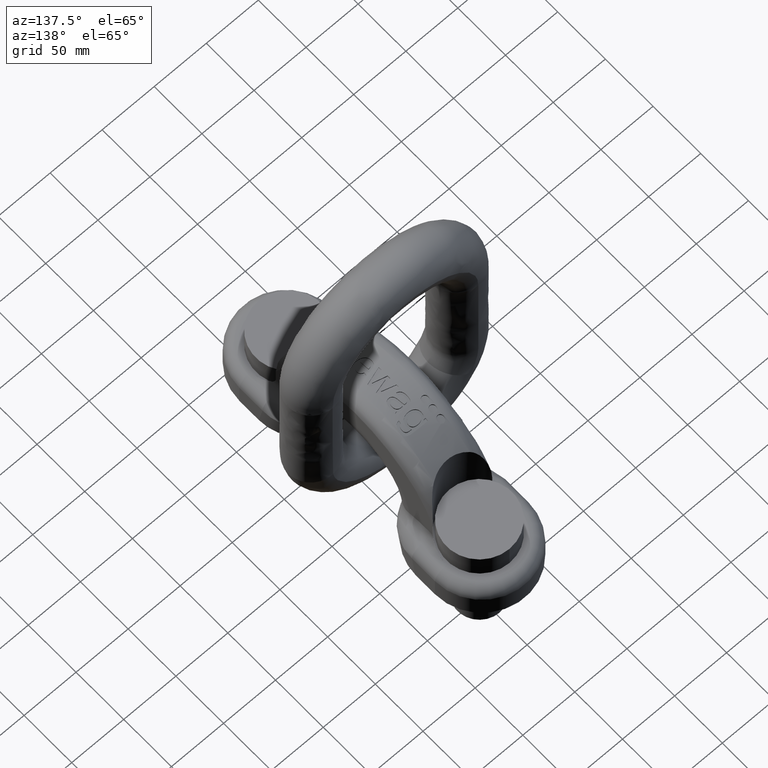
[diagram: clean part render]
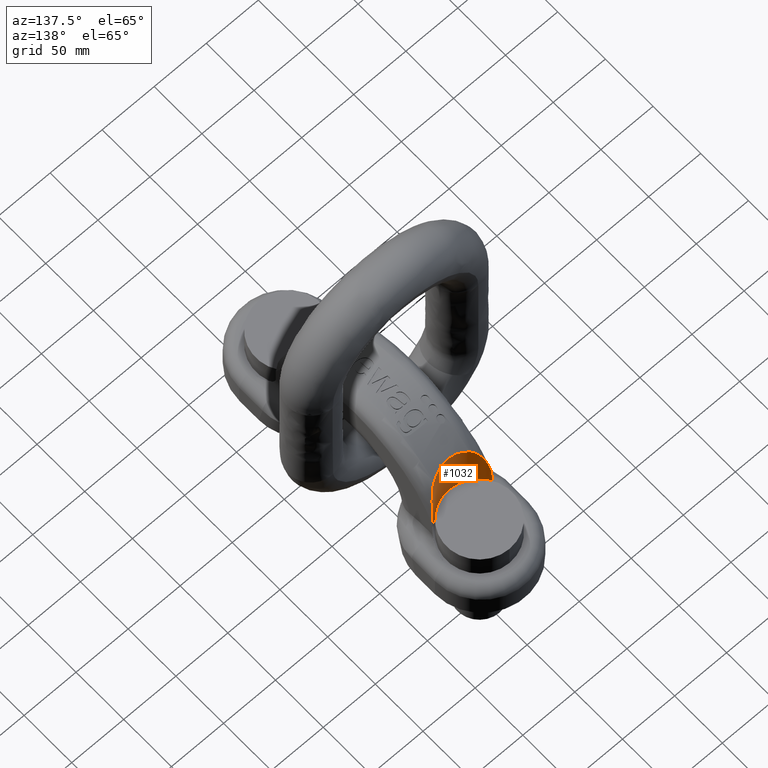
[diagram: same view with one face highlighted and labeled with its STEP entity id]
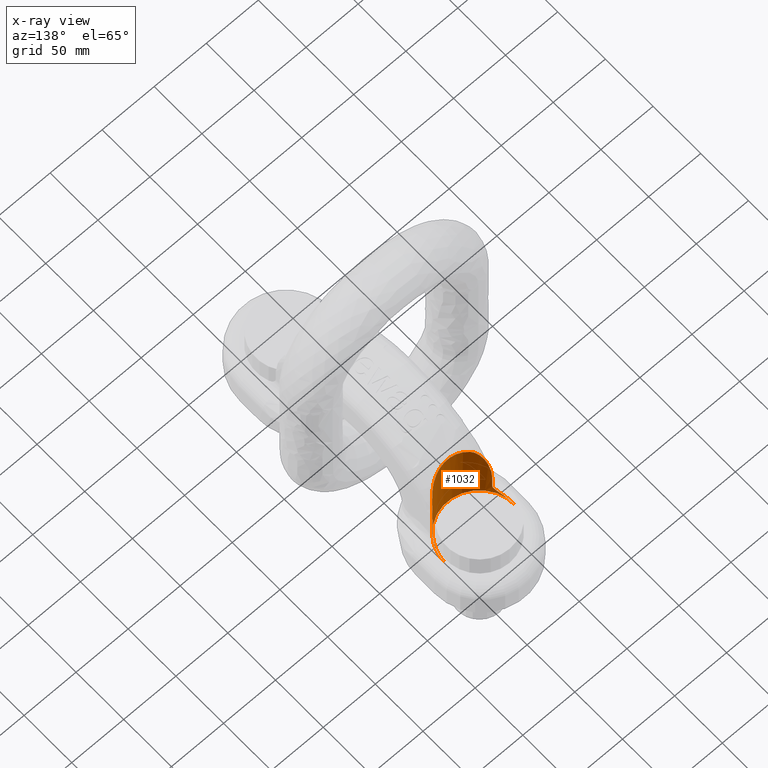
[diagram: x-ray of the same camera — body ghosted, the highlighted face saturated]
A machine part, auxiliary view. The second image highlights one B-rep face of the part: STEP entity #1032.
The next image is the same camera in x-ray: the body ghosted, the highlighted face saturated — about 0% of this face is hidden behind the body in this view.
In plain terms, the highlighted cylindrical surface (partial cylindrical patch) has radius 33.5 mm, axis along (0, 0, -1).
Its self-contained STEP definition (entity closure, byte-faithful):
#878=FACE_OUTER_BOUND('',#1615,.T.);
#1032=ADVANCED_FACE('',(#878),#1163,.F.);
#1163=CYLINDRICAL_SURFACE('',#3667,33.5);
#1188=LINE('',#4963,#1318);
#1190=LINE('',#4972,#1320);
#1318=VECTOR('',#3811,1.);
#1320=VECTOR('',#3819,1.);
#1615=EDGE_LOOP('',(#2384,#2385,#2386,#2387,#2388,#2389,#2390,#2391,#2392,
#2393,#2394,#2395));
#1759=B_SPLINE_CURVE_WITH_KNOTS('',3,(#4595,#4596,#4597,#4598,#4599,#4600,
#4601,#4602,#4603,#4604),.UNSPECIFIED.,.F.,.F.,(4,2,2,2,4),(0.,0.25,0.5,
0.75,1.),.UNSPECIFIED.);
#1785=B_SPLINE_CURVE_WITH_KNOTS('',3,(#5008,#5009,#5010,#5011,#5012,#5013,
#5014,#5015,#5016,#5017),.UNSPECIFIED.,.F.,.F.,(4,2,2,2,4),(0.,0.125,0.249999999999999,
0.5,1.),.UNSPECIFIED.);
#1787=B_SPLINE_CURVE_WITH_KNOTS('',3,(#5031,#5032,#5033,#5034,#5035,#5036,
#5037,#5038,#5039,#5040,#5041,#5042),.UNSPECIFIED.,.F.,.F.,(4,2,2,2,2,4),
(0.,0.25,0.5,0.75,0.875,1.),.UNSPECIFIED.);
#1788=B_SPLINE_CURVE_WITH_KNOTS('',3,(#5044,#5045,#5046,#5047,#5048,#5049),
 .UNSPECIFIED.,.F.,.F.,(4,2,4),(0.,0.5,1.),.UNSPECIFIED.);
#1789=B_SPLINE_CURVE_WITH_KNOTS('',3,(#5057,#5058,#5059,#5060,#5061,#5062),
 .UNSPECIFIED.,.F.,.F.,(4,2,4),(0.,0.5,1.),.UNSPECIFIED.);
#1791=B_SPLINE_CURVE_WITH_KNOTS('',3,(#5090,#5091,#5092,#5093),
 .UNSPECIFIED.,.F.,.F.,(4,4),(0.,1.),.UNSPECIFIED.);
#1793=B_SPLINE_CURVE_WITH_KNOTS('',3,(#5111,#5112,#5113,#5114),
 .UNSPECIFIED.,.F.,.F.,(4,4),(0.,1.),.UNSPECIFIED.);
#1795=B_SPLINE_CURVE_WITH_KNOTS('',3,(#5135,#5136,#5137,#5138,#5139,#5140),
 .UNSPECIFIED.,.F.,.F.,(4,2,4),(0.,0.5,1.),.UNSPECIFIED.);
#1797=B_SPLINE_CURVE_WITH_KNOTS('',3,(#5168,#5169,#5170,#5171,#5172,#5173),
 .UNSPECIFIED.,.F.,.F.,(4,2,4),(0.,0.5,1.),.UNSPECIFIED.);
#1998=CIRCLE('',#3616,33.5);
#2384=ORIENTED_EDGE('',*,*,#3213,.T.);
#2385=ORIENTED_EDGE('',*,*,#3210,.T.);
#2386=ORIENTED_EDGE('',*,*,#3206,.T.);
#2387=ORIENTED_EDGE('',*,*,#3194,.F.);
#2388=ORIENTED_EDGE('',*,*,#3203,.F.);
#2389=ORIENTED_EDGE('',*,*,#3148,.T.);
#2390=ORIENTED_EDGE('',*,*,#3205,.F.);
#2391=ORIENTED_EDGE('',*,*,#3190,.F.);
#2392=ORIENTED_EDGE('',*,*,#3221,.T.);
#2393=ORIENTED_EDGE('',*,*,#3218,.T.);
#2394=ORIENTED_EDGE('',*,*,#3215,.T.);
#2395=ORIENTED_EDGE('',*,*,#3275,.F.);
#2879=VERTEX_POINT('',#4580);
#2882=VERTEX_POINT('',#4594);
#2924=VERTEX_POINT('',#4962);
#2925=VERTEX_POINT('',#4964);
#2928=VERTEX_POINT('',#4971);
#2929=VERTEX_POINT('',#4973);
#2936=VERTEX_POINT('',#5050);
#2939=VERTEX_POINT('',#5063);
#2941=VERTEX_POINT('',#5094);
#2942=VERTEX_POINT('',#5115);
#2943=VERTEX_POINT('',#5116);
#2945=VERTEX_POINT('',#5141);
#3148=EDGE_CURVE('',#2879,#2882,#1759,.T.);
#3190=EDGE_CURVE('',#2924,#2925,#1188,.T.);
#3194=EDGE_CURVE('',#2928,#2929,#1190,.T.);
#3203=EDGE_CURVE('',#2879,#2928,#1785,.T.);
#3205=EDGE_CURVE('',#2925,#2882,#1787,.T.);
#3206=EDGE_CURVE('',#2936,#2929,#1788,.T.);
#3210=EDGE_CURVE('',#2939,#2936,#1789,.T.);
#3213=EDGE_CURVE('',#2941,#2939,#1791,.T.);
#3215=EDGE_CURVE('',#2942,#2943,#1793,.T.);
#3218=EDGE_CURVE('',#2945,#2942,#1795,.T.);
#3221=EDGE_CURVE('',#2924,#2945,#1797,.T.);
#3275=EDGE_CURVE('',#2941,#2943,#1998,.T.);
#3616=AXIS2_PLACEMENT_3D('',#5288,#3945,#3946);
#3667=AXIS2_PLACEMENT_3D('',#5937,#4054,#4055);
#3811=DIRECTION('',(0.,0.,1.));
#3819=DIRECTION('',(0.,0.,-1.));
#3945=DIRECTION('',(0.,0.,1.));
#3946=DIRECTION('',(1.,0.,0.));
#4054=DIRECTION('',(0.,0.,-1.));
#4055=DIRECTION('',(-1.,0.,0.));
#4580=CARTESIAN_POINT('',(-17.25,71.2826272093006,98.7859183879033));
#4594=CARTESIAN_POINT('',(17.2499999999802,71.2826272092887,98.7859183879162));
#4595=CARTESIAN_POINT('',(-17.25,71.2826272093006,98.7859183879033));
#4596=CARTESIAN_POINT('',(-14.8813647937172,69.8598314122696,100.327595161293));
#4597=CARTESIAN_POINT('',(-12.1966958032284,68.6492453176089,101.539626679179));
#4598=CARTESIAN_POINT('',(-6.30989384954624,66.9573843759394,103.193361406412));
#4599=CARTESIAN_POINT('',(-3.19926131233253,66.5018806193998,103.615153336341));
#4600=CARTESIAN_POINT('',(3.15975479605201,66.4981310281,103.618684329301));
#4601=CARTESIAN_POINT('',(6.28871737302955,66.952798327085,103.197740495797));
#4602=CARTESIAN_POINT('',(12.187692862586,68.6451654876728,101.543717653134));
#4603=CARTESIAN_POINT('',(14.8815531721436,69.8599445677433,100.327472551171));
#4604=CARTESIAN_POINT('',(17.2499999999802,71.2826272092887,98.7859183879162));
#4962=CARTESIAN_POINT('',(28.5,82.393183138341,43.4352484422014));
#4963=CARTESIAN_POINT('',(28.5,82.393183138341,139.7));
#4964=CARTESIAN_POINT('',(28.5,82.393183138341,56.7576487121895));
#4971=CARTESIAN_POINT('',(-28.5,82.393183138341,56.757648712211));
#4972=CARTESIAN_POINT('',(-28.5,82.393183138341,139.7));
#4973=CARTESIAN_POINT('',(-28.5,82.393183138341,43.4352484422014));
#5008=CARTESIAN_POINT('',(-17.25,71.2826272093006,98.7859183879033));
#5009=CARTESIAN_POINT('',(-18.7327053409328,72.1732611582172,97.820867974132));
#5010=CARTESIAN_POINT('',(-19.8813944195158,73.0068914220437,96.4917327968407));
#5011=CARTESIAN_POINT('',(-21.8887024871996,74.6074330129356,93.521116766512));
#5012=CARTESIAN_POINT('',(-22.6982387099181,75.3422763055189,91.9185136062366));
#5013=CARTESIAN_POINT('',(-24.8053191386329,77.3991226777861,86.8995580299854));
#5014=CARTESIAN_POINT('',(-25.7736021737588,78.5669346959696,83.2703942667855));
#5015=CARTESIAN_POINT('',(-27.9490631349377,81.3795999175274,72.2593920057563));
#5016=CARTESIAN_POINT('',(-28.4999999999989,82.393183138339,64.4681849493534));
#5017=CARTESIAN_POINT('',(-28.5,82.3931831383408,56.757648712211));
#5031=CARTESIAN_POINT('',(28.5,82.393183138341,56.7576487121895));
#5032=CARTESIAN_POINT('',(28.5,82.3931831383409,60.613279148144));
#5033=CARTESIAN_POINT('',(28.3491767950717,82.1417903864174,64.5085900530411));
#5034=CARTESIAN_POINT('',(27.7090981824433,81.1639347666079,72.1621844975057));
#5035=CARTESIAN_POINT('',(27.2261992385297,80.4454837459142,75.9118302351204));
#5036=CARTESIAN_POINT('',(25.7814345248804,78.5765860622839,83.2370135048475));
#5037=CARTESIAN_POINT('',(24.8183166928072,77.4130203215803,86.8616389382523));
#5038=CARTESIAN_POINT('',(22.7075027994182,75.3507213040855,91.8998880106614));
#5039=CARTESIAN_POINT('',(21.8864800527951,74.6059683843252,93.5230218169113));
#5040=CARTESIAN_POINT('',(19.8934707261996,73.0162146231274,96.4752381721029));
#5041=CARTESIAN_POINT('',(18.7262371651426,72.1693758434556,97.825077924389));
#5042=CARTESIAN_POINT('',(17.2499999999802,71.2826272092887,98.7859183879162));
#5044=CARTESIAN_POINT('',(-30.0102926850077,85.1126787849467,37.8049197290369));
#5045=CARTESIAN_POINT('',(-29.6209949759814,84.3279212035983,38.4783521230368));
#5046=CARTESIAN_POINT('',(-29.2394534971612,83.6409221586993,39.3010953807994));
#5047=CARTESIAN_POINT('',(-28.6749846349505,82.6705359339725,41.2201087203427));
#5048=CARTESIAN_POINT('',(-28.5,82.393183138341,42.3178506264848));
#5049=CARTESIAN_POINT('',(-28.5,82.3931831383409,43.4352484422014));
#5050=CARTESIAN_POINT('',(-30.0102926850077,85.1126787849467,37.8049197290369));
#5057=CARTESIAN_POINT('',(-33.4994722958303,100.18803164863,33.0051585819053));
#5058=CARTESIAN_POINT('',(-33.5151205148884,97.4001654323079,33.0620354908099));
#5059=CARTESIAN_POINT('',(-33.1846119190713,94.6858520165626,33.3920250433483));
#5060=CARTESIAN_POINT('',(-31.9146395081485,89.4684083788741,34.9211466395274));
#5061=CARTESIAN_POINT('',(-30.9958495129604,87.0993927435778,36.1000396881774));
#5062=CARTESIAN_POINT('',(-30.0102926850077,85.1126787849468,37.8049197290368));
#5063=CARTESIAN_POINT('',(-33.4994722958303,100.18803164863,33.0051585819053));
#5090=CARTESIAN_POINT('',(-33.4928239246255,100.693358171536,32.9999999999999));
#5091=CARTESIAN_POINT('',(-33.4963106992623,100.524928730924,32.9999999999999));
#5092=CARTESIAN_POINT('',(-33.4985269149096,100.356459475534,33.001722386111));
#5093=CARTESIAN_POINT('',(-33.4994722958305,100.18803164863,33.0051585819053));
#5094=CARTESIAN_POINT('',(-33.4928239246255,100.693358171536,32.9999999999999));
#5111=CARTESIAN_POINT('',(33.4994722958304,100.188031648631,33.0051585819053));
#5112=CARTESIAN_POINT('',(33.4985269149096,100.356459475534,33.001722386111));
#5113=CARTESIAN_POINT('',(33.4963106992624,100.524928730924,32.9999999999998));
#5114=CARTESIAN_POINT('',(33.4928239246255,100.693358171535,32.9999999999999));
#5115=CARTESIAN_POINT('',(33.4994722958304,100.188031648631,33.0051585819053));
#5116=CARTESIAN_POINT('',(33.4928239246255,100.693358171535,32.9999999999999));
#5135=CARTESIAN_POINT('',(30.0102926850076,85.1126787849468,37.8049197290369));
#5136=CARTESIAN_POINT('',(30.9932516646201,87.094155925757,36.1045336145132));
#5137=CARTESIAN_POINT('',(31.9162172259136,89.4819122255519,34.9196944183819));
#5138=CARTESIAN_POINT('',(33.1731318714599,94.6317214787764,33.4054037628078));
#5139=CARTESIAN_POINT('',(33.5150933619019,97.40500297286,33.0619367972815));
#5140=CARTESIAN_POINT('',(33.4994722958305,100.188031648631,33.0051585819053));
#5141=CARTESIAN_POINT('',(30.0102926850077,85.1126787849468,37.8049197290368));
#5168=CARTESIAN_POINT('',(28.5,82.393183138341,43.4352484422014));
#5169=CARTESIAN_POINT('',(28.5,82.393183138341,42.3194765100806));
#5170=CARTESIAN_POINT('',(28.6745981709262,82.6698702009532,41.2213997093426));
#5171=CARTESIAN_POINT('',(29.2398808660245,83.6416582118911,39.2996653301029));
#5172=CARTESIAN_POINT('',(29.6166744673898,84.3192117974191,38.4858260186611));
#5173=CARTESIAN_POINT('',(30.0102926850077,85.1126787849466,37.8049197290367));
#5288=CARTESIAN_POINT('',(0.,100.,32.9999999999999));
#5937=CARTESIAN_POINT('',(0.,100.,139.7));